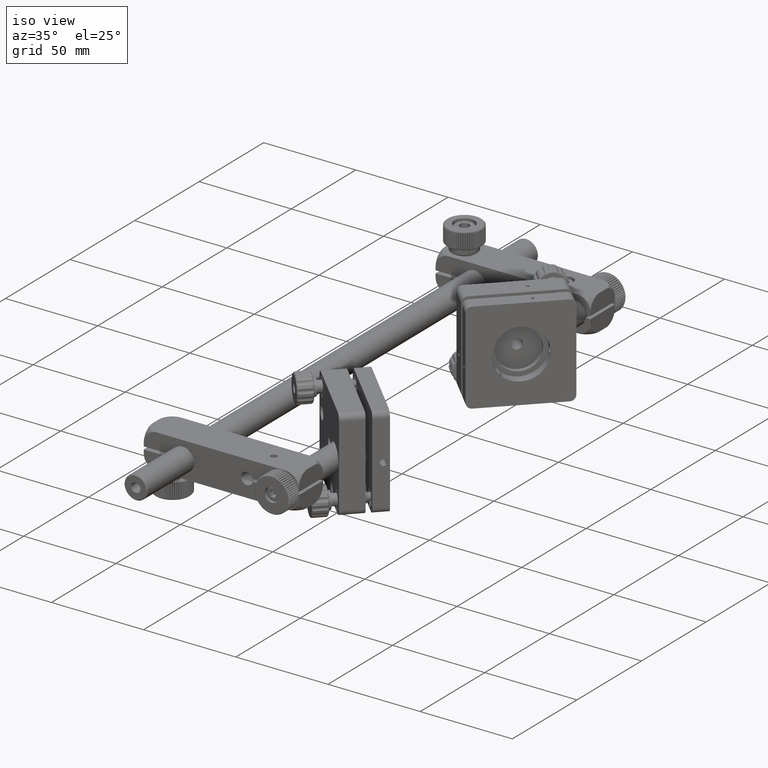
[diagram: clean part render]
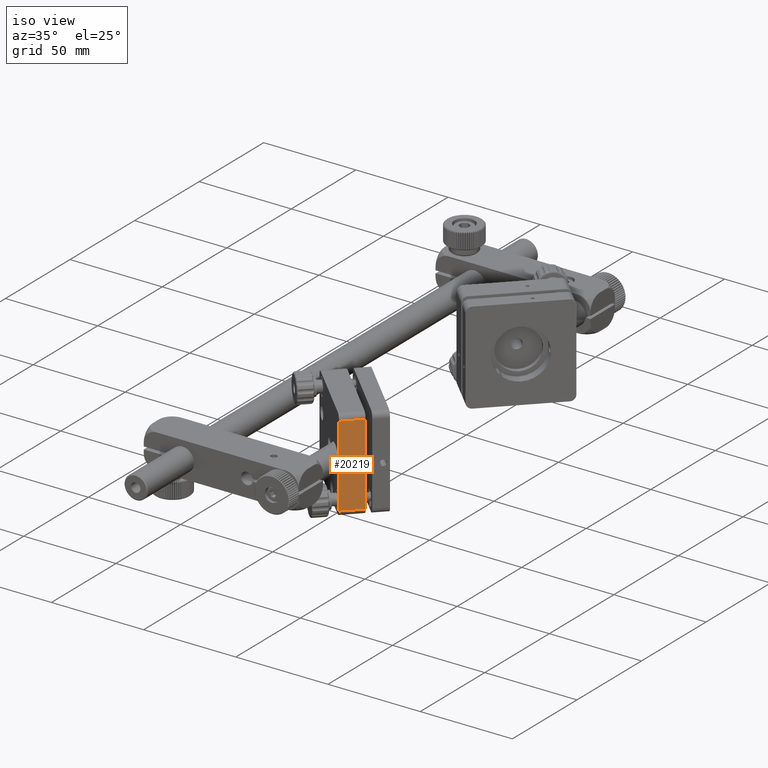
[diagram: same view with one face highlighted and labeled with its STEP entity id]
A machine part, iso view. The second image highlights one B-rep face of the part: STEP entity #20219.
In plain terms, the highlighted planar face has unit normal (0.7071, -0.7071, -0).
Its self-contained STEP definition (entity closure, byte-faithful):
#291 = CARTESIAN_POINT ( 'NONE',  ( 69.53886794013503447, 94.05822791891385748, -21.99999999999991473 ) ) ;
#3493 = VECTOR ( 'NONE', #15188, 1000.000000000000000 ) ;
#3939 = EDGE_CURVE ( 'NONE', #44786, #10018, #40737, .T. ) ;
#8125 = EDGE_LOOP ( 'NONE', ( #44462, #21364, #8184, #28550 ) ) ;
#8184 = ORIENTED_EDGE ( 'NONE', *, *, #10027, .T. ) ;
#9321 = CARTESIAN_POINT ( 'NONE',  ( 61.05358656589650224, 85.57294654467527550, 22.00000000000003197 ) ) ;
#10018 = VERTEX_POINT ( 'NONE', #43468 ) ;
#10027 = EDGE_CURVE ( 'NONE', #44786, #21624, #14226, .T. ) ;
#11235 = AXIS2_PLACEMENT_3D ( 'NONE', #60405, #26206, #56253 ) ;
#14226 = LINE ( 'NONE', #20309, #53608 ) ;
#15188 = DIRECTION ( 'NONE',  ( -4.468234455873618704E-16, -2.911315977180368823E-16, -1.000000000000000000 ) ) ;
#16481 = DIRECTION ( 'NONE',  ( 0.7071067811865444641, 0.7071067811865505703, 6.511551331494238268E-16 ) ) ;
#20219 = ADVANCED_FACE ( 'NONE', ( #30961 ), #41131, .T. ) ;
#20309 = CARTESIAN_POINT ( 'NONE',  ( 61.05358656589650934, 85.57294654467524708, -21.99999999999992895 ) ) ;
#21364 = ORIENTED_EDGE ( 'NONE', *, *, #3939, .F. ) ;
#21624 = VERTEX_POINT ( 'NONE', #59643 ) ;
#26206 = DIRECTION ( 'NONE',  ( 0.7071067811865521247, -0.7071067811865430208, -1.100907614038673971E-16 ) ) ;
#28550 = ORIENTED_EDGE ( 'NONE', *, *, #56975, .T. ) ;
#28678 = CARTESIAN_POINT ( 'NONE',  ( 69.53886794013503447, 94.05822791891385748, -21.99999999999991473 ) ) ;
#30961 = FACE_OUTER_BOUND ( 'NONE', #8125, .T. ) ;
#32286 = CARTESIAN_POINT ( 'NONE',  ( 61.05358656589650934, 85.57294654467524708, -21.99999999999992895 ) ) ;
#33204 = EDGE_CURVE ( 'NONE', #10018, #56315, #58951, .T. ) ;
#34578 = DIRECTION ( 'NONE',  ( -4.468234455873618704E-16, -2.911315977180368823E-16, -1.000000000000000000 ) ) ;
#37039 = LINE ( 'NONE', #32286, #47142 ) ;
#40737 = LINE ( 'NONE', #49256, #48811 ) ;
#41131 = PLANE ( 'NONE',  #11235 ) ;
#43468 = CARTESIAN_POINT ( 'NONE',  ( 69.53886794013509132, 94.05822791891390011, 22.00000000000004619 ) ) ;
#44462 = ORIENTED_EDGE ( 'NONE', *, *, #33204, .F. ) ;
#44786 = VERTEX_POINT ( 'NONE', #9321 ) ;
#47142 = VECTOR ( 'NONE', #16481, 1000.000000000000114 ) ;
#48811 = VECTOR ( 'NONE', #54316, 1000.000000000000114 ) ;
#49256 = CARTESIAN_POINT ( 'NONE',  ( 61.05358656589650224, 85.57294654467527550, 22.00000000000003197 ) ) ;
#53608 = VECTOR ( 'NONE', #34578, 1000.000000000000000 ) ;
#54316 = DIRECTION ( 'NONE',  ( 0.7071067811865444641, 0.7071067811865505703, 6.511551331494238268E-16 ) ) ;
#56253 = DIRECTION ( 'NONE',  ( -4.468234455873618704E-16, -2.911315977180368823E-16, -1.000000000000000000 ) ) ;
#56315 = VERTEX_POINT ( 'NONE', #28678 ) ;
#56975 = EDGE_CURVE ( 'NONE', #21624, #56315, #37039, .T. ) ;
#58951 = LINE ( 'NONE', #291, #3493 ) ;
#59643 = CARTESIAN_POINT ( 'NONE',  ( 61.05358656589650934, 85.57294654467524708, -21.99999999999992895 ) ) ;
#60405 = CARTESIAN_POINT ( 'NONE',  ( 61.05358656589650934, 85.57294654467524708, -21.99999999999992895 ) ) ;